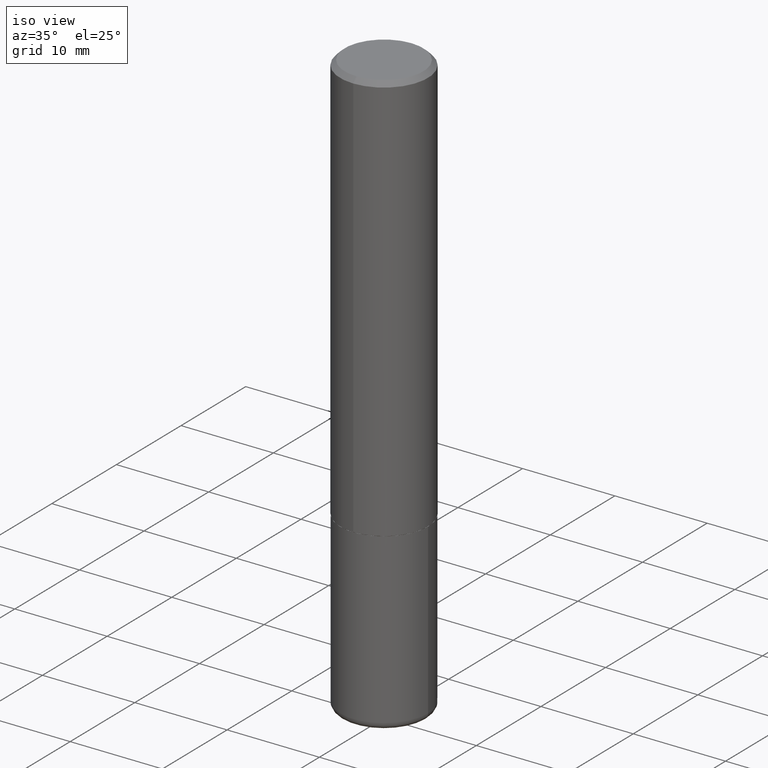
[diagram: clean part render]
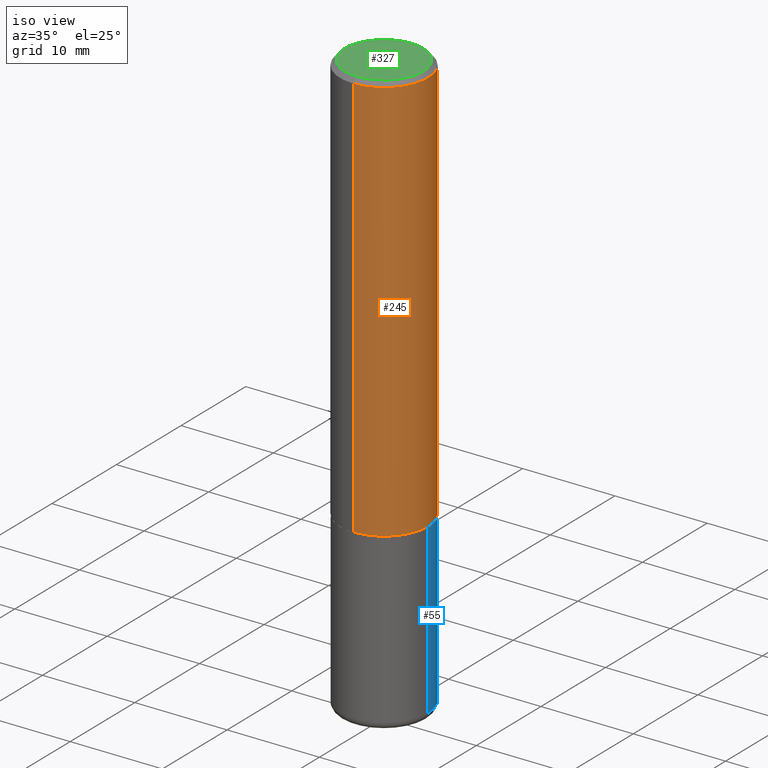
[diagram: same view with three faces highlighted in distinct colors, each labeled with its STEP entity id]
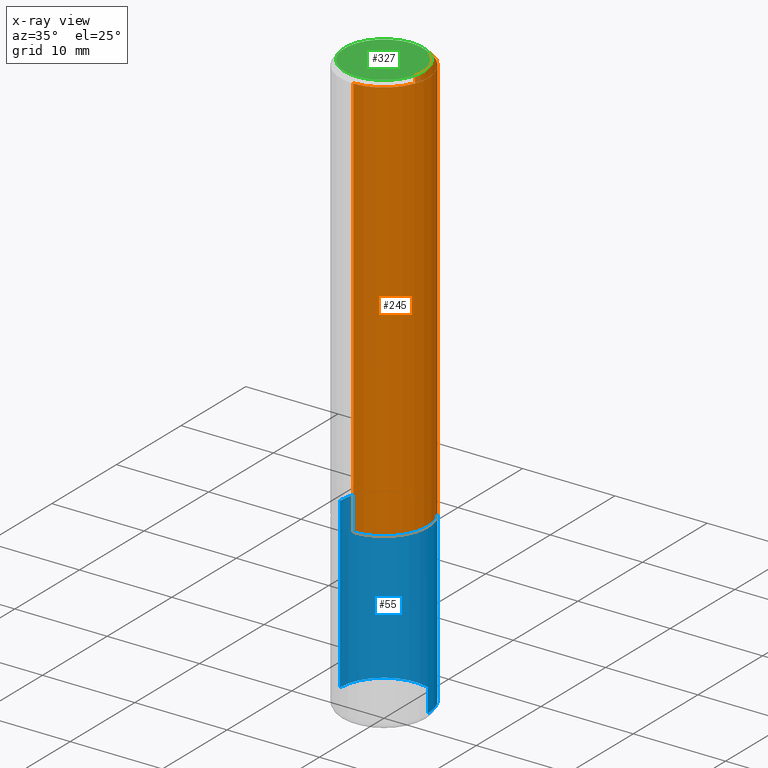
[diagram: x-ray of the same camera — body ghosted, the three highlighted faces saturated]
A machine part, iso view with three faces highlighted in distinct colors.
The next image is the same camera in x-ray (body ghosted, the three faces saturated) — at least one of them is partly hidden behind the body in this view.
Their STEP definitions:

[orange] entity #245 — the highlighted cylindrical surface (partial cylindrical patch) has radius 4.7625 mm, axis along (-0, 0, 1).
#4 = DIRECTION ( 'NONE',  ( -2.444650961945200818E-29, 3.492652538343536856E-15, 1.000000000000000000 ) ) ;
#5 = LINE ( 'NONE', #258, #79 ) ;
#15 = DIRECTION ( 'NONE',  ( -2.444650961945200818E-29, 3.492652538343536856E-15, 1.000000000000000000 ) ) ;
#19 = CARTESIAN_POINT ( 'NONE',  ( 4.889301923890413792E-31, -6.985305076687091116E-17, -0.02000000000000005246 ) ) ;
#25 = CARTESIAN_POINT ( 'NONE',  ( 1.309305502066175205E-15, 0.1874999999999999167, -0.02000000000000070471 ) ) ;
#34 = DIRECTION ( 'NONE',  ( -6.982962677686266711E-15, -1.000000000000000000, 2.913971193241876428E-15 ) ) ;
#39 = CARTESIAN_POINT ( 'NONE',  ( -1.309305502066175797E-15, -0.1875000000000001110, 6.548723509394135303E-16 ) ) ;
#42 = DIRECTION ( 'NONE',  ( -6.982962677686266711E-15, -1.000000000000000000, 3.492652538343536856E-15 ) ) ;
#58 = DIRECTION ( 'NONE',  ( -2.444650961945200818E-29, 3.492652538343536856E-15, 1.000000000000000000 ) ) ;
#65 = CARTESIAN_POINT ( 'NONE',  ( -1.309305502066134185E-15, -0.1875000000000064115, -1.748999999999999666 ) ) ;
#79 = VECTOR ( 'NONE', #391, 39.37007874015748143 ) ;
#99 = VERTEX_POINT ( 'NONE', #25 ) ;
#124 = ORIENTED_EDGE ( 'NONE', *, *, #331, .F. ) ;
#143 = DIRECTION ( 'NONE',  ( -6.982962677686266711E-15, -1.000000000000000000, 3.483106191921935949E-15 ) ) ;
#163 = CARTESIAN_POINT ( 'NONE',  ( 4.275694532442156646E-29, -6.108649289562846914E-15, -1.749000000000000110 ) ) ;
#164 = FACE_OUTER_BOUND ( 'NONE', #230, .T. ) ;
#194 = CIRCLE ( 'NONE', #252, 0.1875000000000002776 ) ;
#196 = CARTESIAN_POINT ( 'NONE',  ( 0.000000000000000000, 0.000000000000000000, 0.000000000000000000 ) ) ;
#204 = CARTESIAN_POINT ( 'NONE',  ( 1.332267629550210528E-15, 0.1874999999999941713, -1.749000000000000554 ) ) ;
#224 = EDGE_CURVE ( 'NONE', #371, #99, #5, .T. ) ;
#228 = CYLINDRICAL_SURFACE ( 'NONE', #365, 0.1875000000000001110 ) ;
#230 = EDGE_LOOP ( 'NONE', ( #378, #406, #124, #404 ) ) ;
#231 = LINE ( 'NONE', #39, #318 ) ;
#245 = ADVANCED_FACE ( 'NONE', ( #164 ), #228, .T. ) ;
#252 = AXIS2_PLACEMENT_3D ( 'NONE', #163, #4, #34 ) ;
#255 = VERTEX_POINT ( 'NONE', #412 ) ;
#258 = CARTESIAN_POINT ( 'NONE',  ( 1.332267629550188440E-15, 0.1875000000000001110, -6.548723509394135303E-16 ) ) ;
#260 = EDGE_CURVE ( 'NONE', #333, #255, #231, .T. ) ;
#280 = CIRCLE ( 'NONE', #392, 0.1874999999999999722 ) ;
#306 = EDGE_CURVE ( 'NONE', #333, #371, #194, .T. ) ;
#318 = VECTOR ( 'NONE', #58, 39.37007874015748143 ) ;
#331 = EDGE_CURVE ( 'NONE', #255, #99, #280, .T. ) ;
#333 = VERTEX_POINT ( 'NONE', #65 ) ;
#359 = DIRECTION ( 'NONE',  ( -2.444650961945200818E-29, 3.492652538343536856E-15, 1.000000000000000000 ) ) ;
#365 = AXIS2_PLACEMENT_3D ( 'NONE', #196, #359, #42 ) ;
#371 = VERTEX_POINT ( 'NONE', #204 ) ;
#378 = ORIENTED_EDGE ( 'NONE', *, *, #306, .T. ) ;
#391 = DIRECTION ( 'NONE',  ( -2.444650961945200818E-29, 3.492652538343536856E-15, 1.000000000000000000 ) ) ;
#392 = AXIS2_PLACEMENT_3D ( 'NONE', #19, #15, #143 ) ;
#404 = ORIENTED_EDGE ( 'NONE', *, *, #260, .F. ) ;
#406 = ORIENTED_EDGE ( 'NONE', *, *, #224, .T. ) ;
#412 = CARTESIAN_POINT ( 'NONE',  ( -1.286343374582161379E-15, -0.1875000000000000555, -0.01999999999999939673 ) ) ;

[blue] entity #55 — the highlighted cylindrical surface (partial cylindrical patch) has radius 4.7625 mm, axis along (-0, 0, 1).
#12 = CARTESIAN_POINT ( 'NONE',  ( -0.1875000000000000555, -7.291691277392382147E-15, -2.470000000000000195 ) ) ;
#22 = VERTEX_POINT ( 'NONE', #242 ) ;
#23 = EDGE_CURVE ( 'NONE', #321, #394, #83, .T. ) ;
#49 = DIRECTION ( 'NONE',  ( 1.000000000000000000, -6.982962677686265922E-15, 4.876176775795935793E-29 ) ) ;
#52 = FACE_OUTER_BOUND ( 'NONE', #186, .T. ) ;
#54 = AXIS2_PLACEMENT_3D ( 'NONE', #234, #182, #49 ) ;
#55 = ADVANCED_FACE ( 'NONE', ( #52 ), #396, .T. ) ;
#63 = ORIENTED_EDGE ( 'NONE', *, *, #114, .F. ) ;
#70 = CIRCLE ( 'NONE', #158, 0.1875000000000000555 ) ;
#83 = LINE ( 'NONE', #214, #334 ) ;
#114 = EDGE_CURVE ( 'NONE', #394, #22, #288, .T. ) ;
#133 = EDGE_CURVE ( 'NONE', #312, #22, #148, .T. ) ;
#134 = ORIENTED_EDGE ( 'NONE', *, *, #133, .T. ) ;
#148 = LINE ( 'NONE', #311, #272 ) ;
#153 = ORIENTED_EDGE ( 'NONE', *, *, #23, .F. ) ;
#158 = AXIS2_PLACEMENT_3D ( 'NONE', #379, #265, #225 ) ;
#165 = ORIENTED_EDGE ( 'NONE', *, *, #257, .T. ) ;
#177 = AXIS2_PLACEMENT_3D ( 'NONE', #198, #221, #217 ) ;
#182 = DIRECTION ( 'NONE',  ( -2.445468806185136597E-29, 3.491481338843145583E-15, 1.000000000000000000 ) ) ;
#186 = EDGE_LOOP ( 'NONE', ( #165, #134, #63, #153 ) ) ;
#198 = CARTESIAN_POINT ( 'NONE',  ( 4.279570410823989044E-29, -6.110092342975505460E-15, -1.750000000000000222 ) ) ;
#212 = CARTESIAN_POINT ( 'NONE',  ( 0.1875000000000000555, -9.933264409008746581E-15, -2.470000000000000195 ) ) ;
#214 = CARTESIAN_POINT ( 'NONE',  ( 0.1875000000000000555, -1.309305502066175205E-15, 9.142831454617382414E-30 ) ) ;
#217 = DIRECTION ( 'NONE',  ( 1.000000000000000000, -6.982962677686266711E-15, 0.000000000000000000 ) ) ;
#221 = DIRECTION ( 'NONE',  ( -2.445468806185136597E-29, 3.491481338843145583E-15, 1.000000000000000000 ) ) ;
#225 = DIRECTION ( 'NONE',  ( 1.000000000000000000, -6.982962677686265922E-15, 0.000000000000000000 ) ) ;
#234 = CARTESIAN_POINT ( 'NONE',  ( 0.000000000000000000, 0.000000000000000000, 0.000000000000000000 ) ) ;
#242 = CARTESIAN_POINT ( 'NONE',  ( -0.1875000000000000278, -6.034757995408849879E-15, -1.750000000000000222 ) ) ;
#257 = EDGE_CURVE ( 'NONE', #321, #312, #70, .T. ) ;
#264 = DIRECTION ( 'NONE',  ( -2.445468806185136877E-29, 3.491481338843145188E-15, 1.000000000000000000 ) ) ;
#265 = DIRECTION ( 'NONE',  ( -2.445468806185136597E-29, 3.491481338843145583E-15, 1.000000000000000000 ) ) ;
#272 = VECTOR ( 'NONE', #387, 39.37007874015748143 ) ;
#288 = CIRCLE ( 'NONE', #177, 0.1875000000000000278 ) ;
#311 = CARTESIAN_POINT ( 'NONE',  ( -0.1875000000000000555, 1.332267629550188243E-15, -9.223003294227950793E-30 ) ) ;
#312 = VERTEX_POINT ( 'NONE', #12 ) ;
#321 = VERTEX_POINT ( 'NONE', #212 ) ;
#334 = VECTOR ( 'NONE', #264, 39.37007874015748143 ) ;
#360 = CARTESIAN_POINT ( 'NONE',  ( 0.1875000000000000278, -7.419397845041680468E-15, -1.750000000000000222 ) ) ;
#379 = CARTESIAN_POINT ( 'NONE',  ( 6.040307951277287977E-29, -8.623958906942569995E-15, -2.470000000000000195 ) ) ;
#387 = DIRECTION ( 'NONE',  ( -2.445468806185136877E-29, 3.491481338843145188E-15, 1.000000000000000000 ) ) ;
#394 = VERTEX_POINT ( 'NONE', #360 ) ;
#396 = CYLINDRICAL_SURFACE ( 'NONE', #54, 0.1875000000000000555 ) ;

[green] entity #327 — the highlighted planar face has unit normal (0, -0, -1).
#31 = DIRECTION ( 'NONE',  ( -6.982962677686265133E-15, -1.000000000000000000, 3.492652538343536856E-15 ) ) ;
#37 = DIRECTION ( 'NONE',  ( -2.444650961945200818E-29, 3.492652538343536856E-15, 1.000000000000000000 ) ) ;
#44 = EDGE_LOOP ( 'NONE', ( #415, #317 ) ) ;
#74 = CIRCLE ( 'NONE', #126, 0.1675000000000002320 ) ;
#102 = DIRECTION ( 'NONE',  ( 6.982962677686265922E-15, 1.000000000000000000, -3.492652538343536856E-15 ) ) ;
#106 = AXIS2_PLACEMENT_3D ( 'NONE', #282, #344, #31 ) ;
#120 = EDGE_CURVE ( 'NONE', #145, #142, #325, .T. ) ;
#126 = AXIS2_PLACEMENT_3D ( 'NONE', #127, #37, #226 ) ;
#127 = CARTESIAN_POINT ( 'NONE',  ( 5.943167387624159977E-45, -8.490953917474353626E-31, -2.431090360194079171E-16 ) ) ;
#142 = VERTEX_POINT ( 'NONE', #410 ) ;
#145 = VERTEX_POINT ( 'NONE', #247 ) ;
#223 = AXIS2_PLACEMENT_3D ( 'NONE', #273, #398, #102 ) ;
#226 = DIRECTION ( 'NONE',  ( -6.982962677686265133E-15, -1.000000000000000000, 3.492652538343536856E-15 ) ) ;
#247 = CARTESIAN_POINT ( 'NONE',  ( -1.217738394604447231E-15, -0.1675000000000002320, 3.419102641531351581E-16 ) ) ;
#269 = FACE_OUTER_BOUND ( 'NONE', #44, .T. ) ;
#273 = CARTESIAN_POINT ( 'NONE',  ( 1.169646248512450976E-15, 0.1675000000000002320, -7.065738181822472063E-16 ) ) ;
#282 = CARTESIAN_POINT ( 'NONE',  ( 5.943167387624159977E-45, -8.490953917474353626E-31, -2.431090360194079171E-16 ) ) ;
#301 = PLANE ( 'NONE',  #223 ) ;
#317 = ORIENTED_EDGE ( 'NONE', *, *, #120, .T. ) ;
#325 = CIRCLE ( 'NONE', #106, 0.1675000000000002320 ) ;
#327 = ADVANCED_FACE ( 'NONE', ( #269 ), #301, .F. ) ;
#344 = DIRECTION ( 'NONE',  ( -2.444650961945200818E-29, 3.492652538343536856E-15, 1.000000000000000000 ) ) ;
#395 = EDGE_CURVE ( 'NONE', #142, #145, #74, .T. ) ;
#398 = DIRECTION ( 'NONE',  ( 2.444650961945200538E-29, -3.492652538343536856E-15, -1.000000000000000000 ) ) ;
#410 = CARTESIAN_POINT ( 'NONE',  ( 1.239475875289313091E-15, 0.1675000000000002320, -8.281283361919508936E-16 ) ) ;
#415 = ORIENTED_EDGE ( 'NONE', *, *, #395, .T. ) ;